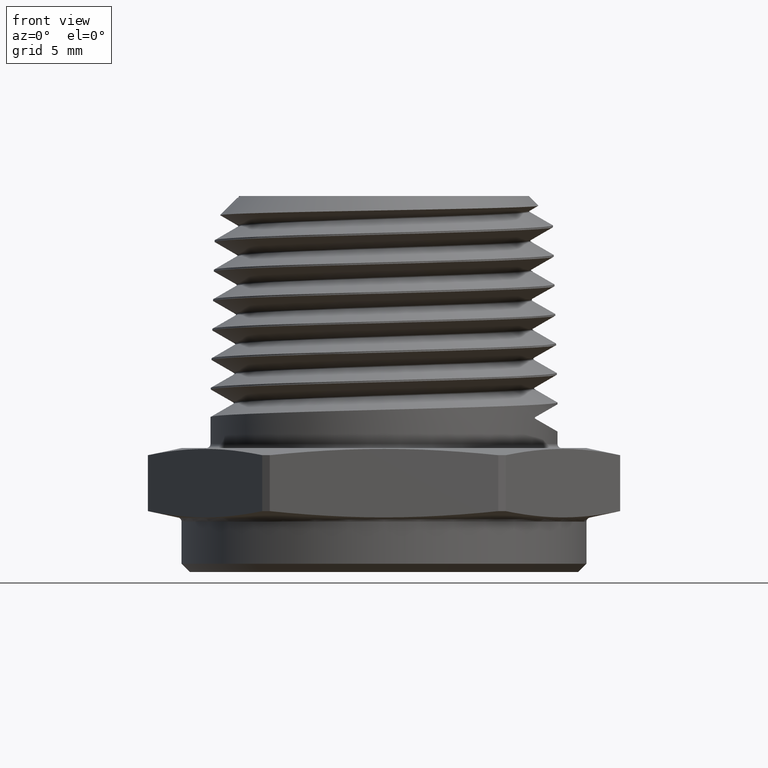
[diagram: clean part render]
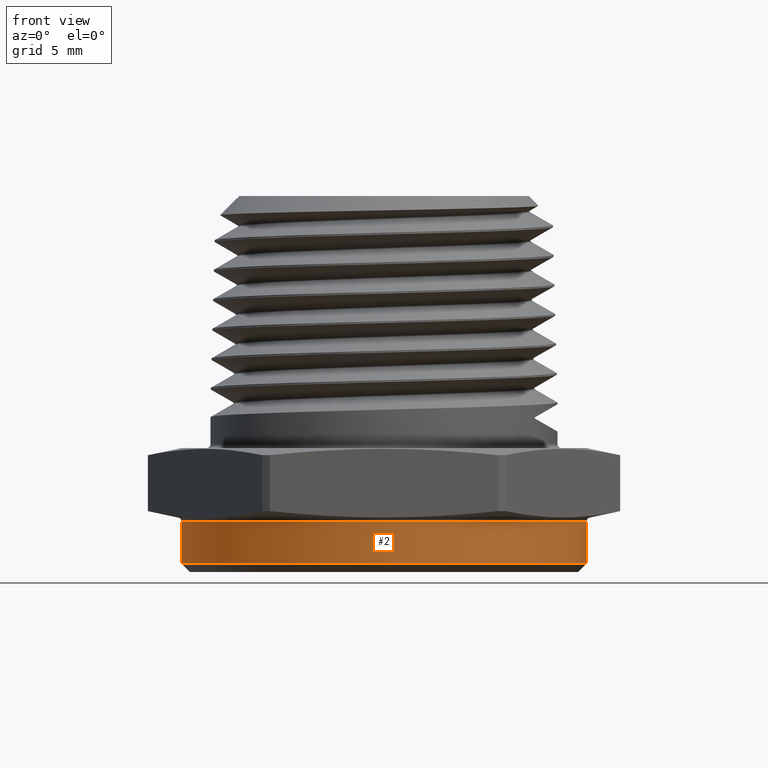
[diagram: same view with one face highlighted and labeled with its STEP entity id]
A machine part, front view. The second image highlights one B-rep face of the part: STEP entity #2.
In plain terms, the highlighted cylindrical surface (partial cylindrical patch) has radius 12.446 mm, axis along (0, 0, 1).
Its self-contained STEP definition (entity closure, byte-faithful):
#2 = ADVANCED_FACE ( 'NONE', ( #2599 ), #2601, .T. ) ;
#219 = VERTEX_POINT ( 'NONE', #4874 ) ;
#222 = VERTEX_POINT ( 'NONE', #4876 ) ;
#224 = VERTEX_POINT ( 'NONE', #4878 ) ;
#225 = VERTEX_POINT ( 'NONE', #4879 ) ;
#254 = EDGE_LOOP ( 'NONE', ( #3594, #3595, #3596, #3597 ) ) ;
#486 = DIRECTION ( 'NONE',  ( 1.000000000000000000, 0.0000000000000000000, 0.0000000000000000000 ) ) ;
#1546 = CARTESIAN_POINT ( 'NONE',  ( 0.0000000000000000000, 0.0000000000000000000, -0.1100000000000010300 ) ) ;
#1547 = DIRECTION ( 'NONE',  ( 0.0000000000000000000, 0.0000000000000000000, 1.000000000000000000 ) ) ;
#1548 = DIRECTION ( 'NONE',  ( -1.000000000000000000, 0.0000000000000000000, 0.0000000000000000000 ) ) ;
#2092 = CARTESIAN_POINT ( 'NONE',  ( 0.0000000000000000000, 0.0000000000000000000, -0.008097840331950198500 ) ) ;
#2093 = DIRECTION ( 'NONE',  ( -6.123233995736756200E-017, -0.0000000000000000000, -1.000000000000000000 ) ) ;
#2094 = DIRECTION ( 'NONE',  ( -1.000000000000000000, 0.0000000000000000000, 6.097874985857729200E-017 ) ) ;
#2095 = CARTESIAN_POINT ( 'NONE',  ( 0.4900000000000000500, 0.0000000000000000000, -0.1300000000000000000 ) ) ;
#2099 = DIRECTION ( 'NONE',  ( -0.0000000000000000000, -0.0000000000000000000, 1.000000000000000000 ) ) ;
#2103 = DIRECTION ( 'NONE',  ( -0.0000000000000000000, -0.0000000000000000000, 1.000000000000000000 ) ) ;
#2104 = CARTESIAN_POINT ( 'NONE',  ( -0.4900000000000000500, 6.000769315822029800E-017, -0.1300000000000000000 ) ) ;
#2599 = FACE_OUTER_BOUND ( 'NONE', #254, .T. ) ;
#2601 = CYLINDRICAL_SURFACE ( 'NONE', #3210, 0.4900000000000000500 ) ;
#2698 = CIRCLE ( 'NONE', #3064, 0.4900000000000000500 ) ;
#2731 = CIRCLE ( 'NONE', #3078, 0.4900000000000000500 ) ;
#2735 = LINE ( 'NONE', #2104, #2739 ) ;
#2739 = VECTOR ( 'NONE', #2099, 39.37007874015748100 ) ;
#2740 = LINE ( 'NONE', #2095, #2742 ) ;
#2742 = VECTOR ( 'NONE', #2103, 39.37007874015748100 ) ;
#3064 = AXIS2_PLACEMENT_3D ( 'NONE', #1546, #1547, #1548 ) ;
#3078 = AXIS2_PLACEMENT_3D ( 'NONE', #2092, #2093, #2094 ) ;
#3132 = EDGE_CURVE ( 'NONE', #224, #225, #2698, .T. ) ;
#3159 = EDGE_CURVE ( 'NONE', #222, #219, #2731, .T. ) ;
#3163 = EDGE_CURVE ( 'NONE', #224, #219, #2735, .T. ) ;
#3165 = EDGE_CURVE ( 'NONE', #225, #222, #2740, .T. ) ;
#3210 = AXIS2_PLACEMENT_3D ( 'NONE', #5181, #5383, #486 ) ;
#3594 = ORIENTED_EDGE ( 'NONE', *, *, #3163, .F. ) ;
#3595 = ORIENTED_EDGE ( 'NONE', *, *, #3132, .T. ) ;
#3596 = ORIENTED_EDGE ( 'NONE', *, *, #3165, .T. ) ;
#3597 = ORIENTED_EDGE ( 'NONE', *, *, #3159, .T. ) ;
#4874 = CARTESIAN_POINT ( 'NONE',  ( -0.4900000000000000500, 6.000769315822029800E-017, -0.008097840331950169000 ) ) ;
#4876 = CARTESIAN_POINT ( 'NONE',  ( 0.4900000000000000500, 0.0000000000000000000, -0.008097840331950228000 ) ) ;
#4878 = CARTESIAN_POINT ( 'NONE',  ( -0.4900000000000000500, 6.000769315822029800E-017, -0.1100000000000010300 ) ) ;
#4879 = CARTESIAN_POINT ( 'NONE',  ( 0.4900000000000000500, 0.0000000000000000000, -0.1100000000000010300 ) ) ;
#5181 = CARTESIAN_POINT ( 'NONE',  ( 0.0000000000000000000, 0.0000000000000000000, -0.1300000000000000000 ) ) ;
#5383 = DIRECTION ( 'NONE',  ( -0.0000000000000000000, -0.0000000000000000000, 1.000000000000000000 ) ) ;